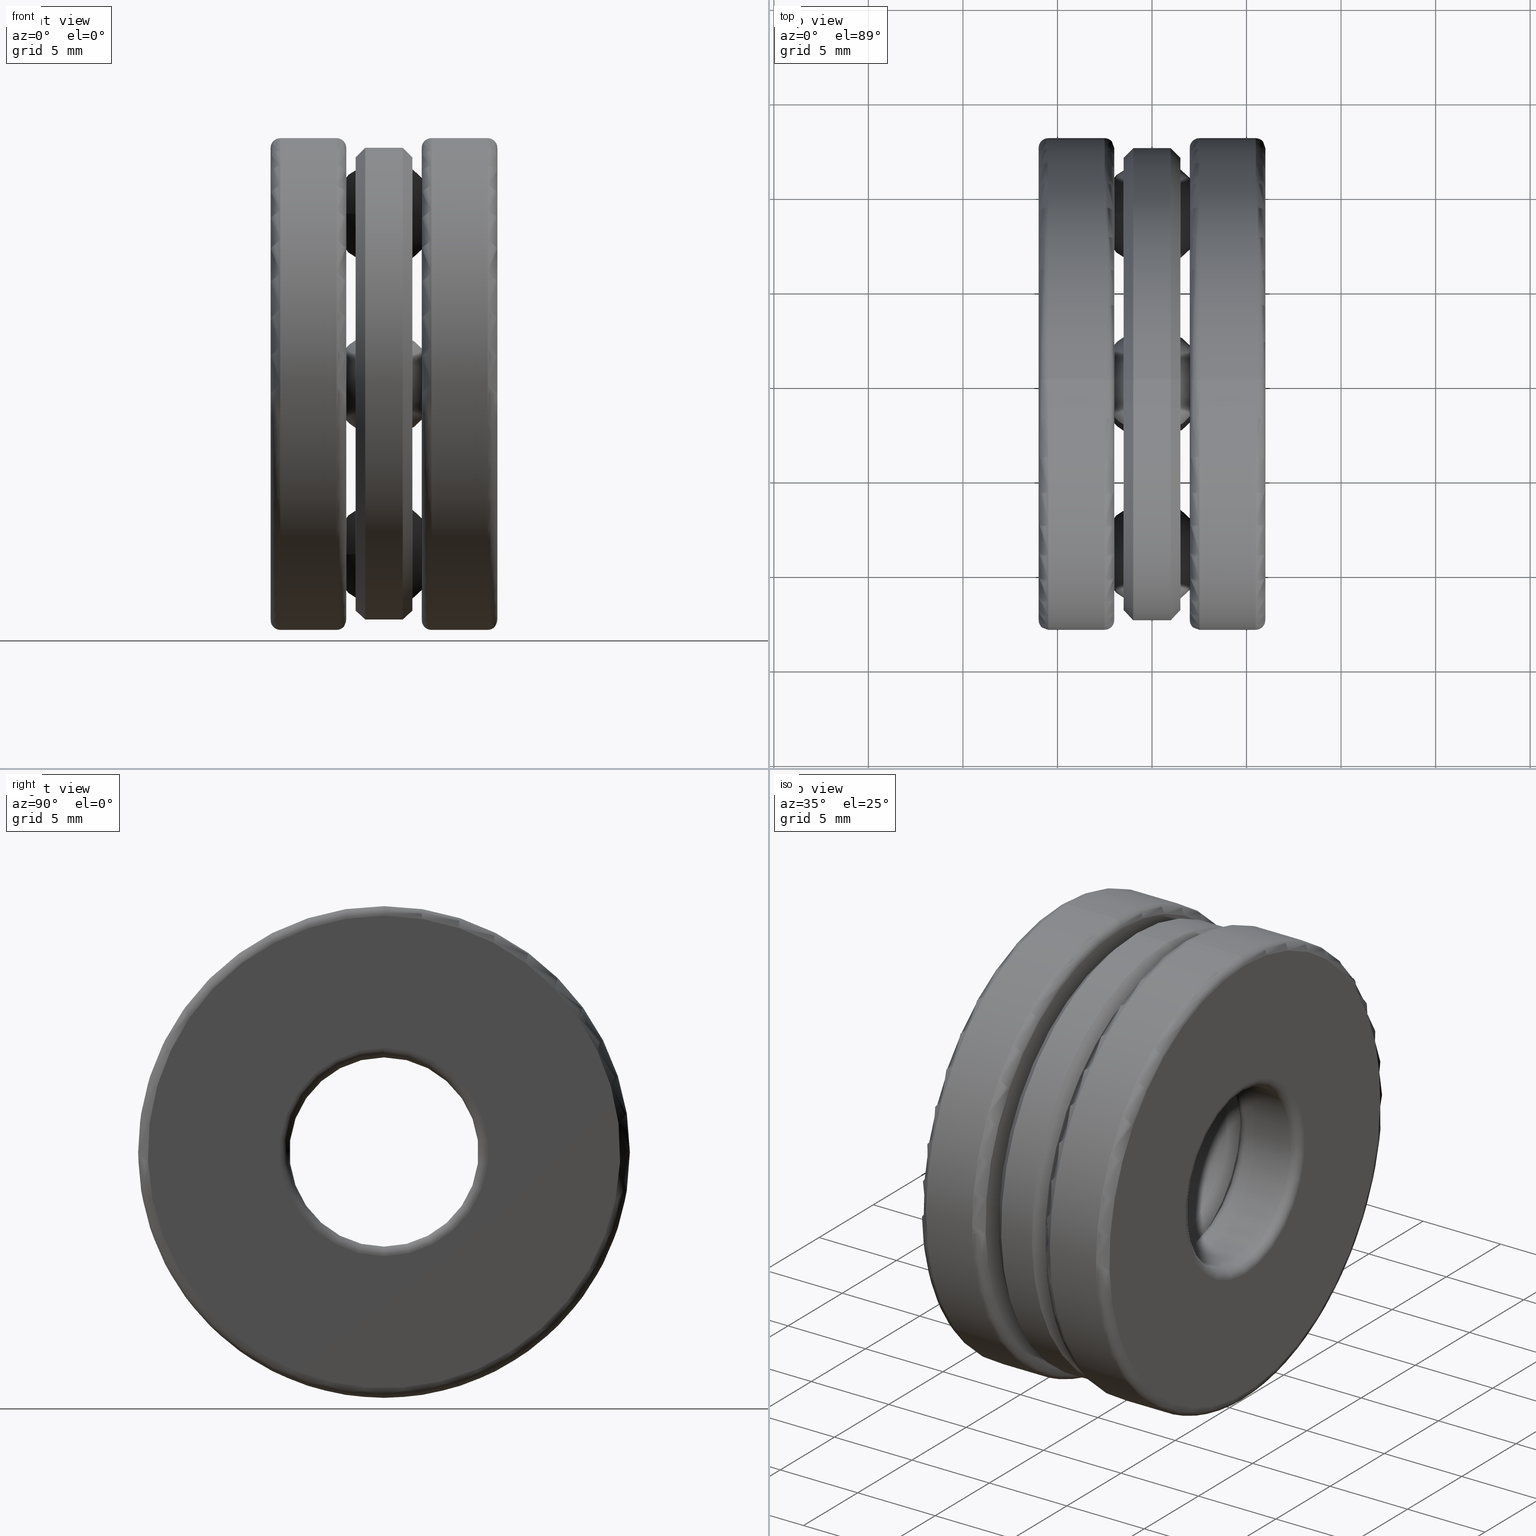
[diagram: canonical four-view strip — front | top / right | iso, engineering-drawing reading convention]
A machine part, canonical four-view strip (front | top / right | iso — engineering-drawing reading convention). The complete STEP part file that produces these views, byte-faithful:
ISO-10303-21;
HEADER;
FILE_DESCRIPTION (( 'STEP AP203' ),
    '1' );
FILE_NAME ('2900-ABB.step',
    '2017-03-07T16:42:49',
    ( '' ),
    ( '' ),
    'SwSTEP 2.0',
    'SolidWorks 2017',
    '' );
FILE_SCHEMA (( 'CONFIG_CONTROL_DESIGN' ));
ENDSEC;

DATA;
#1 = FACE_OUTER_BOUND ( 'NONE', #277, .T. ) ;
#2 = DIRECTION ( 'NONE',  ( -1.000000000000000000, -0.0000000000000000000, -0.0000000000000000000 ) ) ;
#3 = EDGE_CURVE ( 'NONE', #415, #415, #361, .T. ) ;
#4 = DIRECTION ( 'NONE',  ( 0.0000000000000000000, 0.0000000000000000000, -1.000000000000000000 ) ) ;
#5 = ORIENTED_EDGE ( 'NONE', *, *, #641, .T. ) ;
#6 = ORIENTED_EDGE ( 'NONE', *, *, #755, .T. ) ;
#7 = ORIENTED_EDGE ( 'NONE', *, *, #527, .T. ) ;
#8 = CARTESIAN_POINT ( 'NONE',  ( -0.03899999999999988900, 0.0000000000000000000, 0.0000000000000000000 ) ) ;
#9 = PERSON_AND_ORGANIZATION ( #132, #281 ) ;
#10 = FACE_BOUND ( 'NONE', #242, .T. ) ;
#11 = DIRECTION ( 'NONE',  ( -1.000000000000000000, -0.0000000000000000000, -0.0000000000000000000 ) ) ;
#12 = DIRECTION ( 'NONE',  ( -1.000000000000000000, -0.0000000000000000000, -0.0000000000000000000 ) ) ;
#13 =( GEOMETRIC_REPRESENTATION_CONTEXT ( 3 ) GLOBAL_UNCERTAINTY_ASSIGNED_CONTEXT ( ( #182 ) ) GLOBAL_UNIT_ASSIGNED_CONTEXT ( ( #288, #550, #290 ) ) REPRESENTATION_CONTEXT ( 'NONE', 'WORKASPACE' ) );
#14 = FACE_OUTER_BOUND ( 'NONE', #632, .T. ) ;
#15 = EDGE_LOOP ( 'NONE', ( #6 ) ) ;
#16 = APPROVAL_DATE_TIME ( #720, #423 ) ;
#17 = AXIS2_PLACEMENT_3D ( 'NONE', #425, #236, #160 ) ;
#18 = CIRCLE ( 'NONE', #626, 0.1969999999999999800 ) ;
#19 = DIRECTION ( 'NONE',  ( -1.000000000000000000, -0.0000000000000000000, -0.0000000000000000000 ) ) ;
#20 = ADVANCED_FACE ( 'NONE', ( #819, #187 ), #22, .F. ) ;
#21 = CC_DESIGN_PERSON_AND_ORGANIZATION_ASSIGNMENT ( #153, #668, ( #612 ) ) ;
#22 = CONICAL_SURFACE ( 'NONE', #699, 0.2369999999999998800, 0.7853981633974480600 ) ;
#23 = ADVANCED_FACE ( 'NONE', ( #509, #420 ), #329, .F. ) ;
#24 = ORIENTED_EDGE ( 'NONE', *, *, #506, .T. ) ;
#25 = ORIENTED_EDGE ( 'NONE', *, *, #183, .F. ) ;
#26 = VERTEX_POINT ( 'NONE', #791 ) ;
#27 = CARTESIAN_POINT ( 'NONE',  ( -0.2360393700787401500, 3.713190403859673000E-015, 0.3545000000000000900 ) ) ;
#28 = CIRCLE ( 'NONE', #38, 0.2369999999999998800 ) ;
#29 = AXIS2_PLACEMENT_3D ( 'NONE', #429, #491, #304 ) ;
#30 = CARTESIAN_POINT ( 'NONE',  ( -0.07866823999999988900, 0.0000000000000000000, 0.2783320407566120500 ) ) ;
#31 = CARTESIAN_POINT ( 'NONE',  ( 0.2160000000000002800, 0.0000000000000000000, 0.1969999999999999800 ) ) ;
#32 = EDGE_LOOP ( 'NONE', ( #371 ) ) ;
#33 = ADVANCED_FACE ( 'NONE', ( #657, #591 ), #773, .T. ) ;
#34 = EDGE_LOOP ( 'NONE', ( #519 ) ) ;
#35 = CARTESIAN_POINT ( 'NONE',  ( -0.09866823999999990700, 0.0000000000000000000, 0.0000000000000000000 ) ) ;
#36 = PERSON_AND_ORGANIZATION ( #132, #281 ) ;
#37 = CARTESIAN_POINT ( 'NONE',  ( -0.2360000000000000200, 0.0000000000000000000, 0.2169999999999998300 ) ) ;
#38 = AXIS2_PLACEMENT_3D ( 'NONE', #201, #77, #723 ) ;
#39 = CARTESIAN_POINT ( 'NONE',  ( 0.03900000000000011800, 0.0000000000000000000, 0.0000000000000000000 ) ) ;
#40 = DIRECTION ( 'NONE',  ( 0.0000000000000000000, 0.0000000000000000000, 1.000000000000000000 ) ) ;
#41 = FACE_OUTER_BOUND ( 'NONE', #717, .T. ) ;
#42 = ORIENTED_EDGE ( 'NONE', *, *, #192, .F. ) ;
#43 = AXIS2_PLACEMENT_3D ( 'NONE', #549, #792, #803 ) ;
#44 = ORIENTED_EDGE ( 'NONE', *, *, #245, .F. ) ;
#45 = DIRECTION ( 'NONE',  ( 0.0000000000000000000, 0.0000000000000000000, 1.000000000000000000 ) ) ;
#46 = DIRECTION ( 'NONE',  ( -1.000000000000000000, -0.0000000000000000000, -0.0000000000000000000 ) ) ;
#47 = VERTEX_POINT ( 'NONE', #737 ) ;
#48 = CIRCLE ( 'NONE', #156, 0.1145000000000000000 ) ;
#49 = PLANE ( 'NONE',  #29 ) ;
#50 = DIRECTION ( 'NONE',  ( -1.000000000000000000, -0.0000000000000000000, -0.0000000000000000000 ) ) ;
#51 = DIRECTION ( 'NONE',  ( 0.0000000000000000000, 0.0000000000000000000, -1.000000000000000000 ) ) ;
#52 = ORIENTED_EDGE ( 'NONE', *, *, #497, .F. ) ;
#53 = ORIENTED_EDGE ( 'NONE', *, *, #755, .F. ) ;
#54 = AXIS2_PLACEMENT_3D ( 'NONE', #644, #769, #707 ) ;
#55 = DIRECTION ( 'NONE',  ( 1.000000000000000000, 0.0000000000000000000, 0.0000000000000000000 ) ) ;
#56 = VERTEX_POINT ( 'NONE', #222 ) ;
#57 = FACE_OUTER_BOUND ( 'NONE', #399, .T. ) ;
#58 = AXIS2_PLACEMENT_3D ( 'NONE', #730, #46, #91 ) ;
#59 = SPHERICAL_SURFACE ( 'NONE', #294, 0.1094999999999999600 ) ;
#60 = FACE_OUTER_BOUND ( 'NONE', #34, .T. ) ;
#61 = CARTESIAN_POINT ( 'NONE',  ( 0.09866824000000018500, 0.0000000000000000000, 0.0000000000000000000 ) ) ;
#62 = EDGE_LOOP ( 'NONE', ( #25 ) ) ;
#63 = COORDINATED_UNIVERSAL_TIME_OFFSET ( 5, 0, .BEHIND. ) ;
#64 = CARTESIAN_POINT ( 'NONE',  ( 0.05900000000000009400, 8.573352746074037000E-018, 0.0000000000000000000 ) ) ;
#65 = VERTEX_POINT ( 'NONE', #606 ) ;
#66 = CIRCLE ( 'NONE', #536, 0.1969999999999999000 ) ;
#67 = AXIS2_PLACEMENT_3D ( 'NONE', #802, #50, #173 ) ;
#68 = CARTESIAN_POINT ( 'NONE',  ( 0.03900000000000006200, 0.0000000000000000000, 0.0000000000000000000 ) ) ;
#69 = EDGE_LOOP ( 'NONE', ( #42 ) ) ;
#70 = ORIENTED_EDGE ( 'NONE', *, *, #237, .T. ) ;
#71 = CARTESIAN_POINT ( 'NONE',  ( 0.2160000000000002800, 0.0000000000000000000, 0.0000000000000000000 ) ) ;
#72 = ADVANCED_BREP_SHAPE_REPRESENTATION ( '2900-ABB', ( #347, #135, #761, #194, #321, #545, #817, #772 ), #13 ) ;
#73 = EDGE_CURVE ( 'NONE', #459, #459, #252, .T. ) ;
#74 = VERTEX_POINT ( 'NONE', #785 ) ;
#75 = CIRCLE ( 'NONE', #175, 0.2169999999999998900 ) ;
#76 = SPHERICAL_SURFACE ( 'NONE', #364, 0.1094999999999999600 ) ;
#77 = DIRECTION ( 'NONE',  ( -1.000000000000000000, -0.0000000000000000000, -0.0000000000000000000 ) ) ;
#78 = AXIS2_PLACEMENT_3D ( 'NONE', #71, #584, #580 ) ;
#79 = ADVANCED_FACE ( 'NONE', ( #14, #307 ), #807, .F. ) ;
#80 = DIRECTION ( 'NONE',  ( 0.0000000000000000000, 0.0000000000000000000, 1.000000000000000000 ) ) ;
#81 = CYLINDRICAL_SURFACE ( 'NONE', #270, 0.1969999999999999800 ) ;
#82 = EDGE_LOOP ( 'NONE', ( #44 ) ) ;
#83 = EDGE_CURVE ( 'NONE', #47, #47, #681, .T. ) ;
#84 = VERTEX_POINT ( 'NONE', #539 ) ;
#85 = ADVANCED_FACE ( 'NONE', ( #126, #476 ), #81, .F. ) ;
#86 = DIRECTION ( 'NONE',  ( 0.0000000000000000000, 0.0000000000000000000, 1.000000000000000000 ) ) ;
#87 = CARTESIAN_POINT ( 'NONE',  ( 2.337818946421670800E-017, 0.0000000000000000000, 0.0000000000000000000 ) ) ;
#88 = AXIS2_PLACEMENT_3D ( 'NONE', #64, #521, #327 ) ;
#89 = ORIENTED_EDGE ( 'NONE', *, *, #751, .F. ) ;
#90 = ORIENTED_EDGE ( 'NONE', *, *, #3, .T. ) ;
#91 = DIRECTION ( 'NONE',  ( 0.0000000000000000000, 0.0000000000000000000, 1.000000000000000000 ) ) ;
#92 = CARTESIAN_POINT ( 'NONE',  ( 0.07866824000000018100, 0.0000000000000000000, 0.2169999999999998900 ) ) ;
#93 = CIRCLE ( 'NONE', #54, 0.1969999999999998400 ) ;
#94 = AXIS2_PLACEMENT_3D ( 'NONE', #526, #771, #141 ) ;
#95 = CARTESIAN_POINT ( 'NONE',  ( -0.05899999999999988600, 0.0000000000000000000, 0.0000000000000000000 ) ) ;
#96 = CARTESIAN_POINT ( 'NONE',  ( 0.03900000000000011800, 0.0000000000000000000, 0.2169999999999998900 ) ) ;
#97 = AXIS2_PLACEMENT_3D ( 'NONE', #540, #798, #613 ) ;
#98 = EDGE_LOOP ( 'NONE', ( #670 ) ) ;
#99 = EDGE_LOOP ( 'NONE', ( #316 ) ) ;
#100 = DIRECTION ( 'NONE',  ( 0.0000000000000000000, 0.0000000000000000000, 1.000000000000000000 ) ) ;
#101 = CALENDAR_DATE ( 2017, 7, 3 ) ;
#102 = CARTESIAN_POINT ( 'NONE',  ( 0.05900000000000009400, 3.713190403859673000E-015, 0.3545000000000000900 ) ) ;
#103 = VERTEX_POINT ( 'NONE', #346 ) ;
#104 = EDGE_CURVE ( 'NONE', #433, #433, #615, .T. ) ;
#105 = CIRCLE ( 'NONE', #110, 0.4719999999999999200 ) ;
#106 = CARTESIAN_POINT ( 'NONE',  ( -0.05899999999999990700, -0.3545000000000000900, 0.0000000000000000000 ) ) ;
#107 = DIRECTION ( 'NONE',  ( 0.0000000000000000000, 0.0000000000000000000, 1.000000000000000000 ) ) ;
#108 = APPLICATION_PROTOCOL_DEFINITION ( 'international standard', 'config_control_design', 1994, #601 ) ;
#109 = ORIENTED_EDGE ( 'NONE', *, *, #357, .F. ) ;
#110 = AXIS2_PLACEMENT_3D ( 'NONE', #500, #238, #248 ) ;
#111 = ORIENTED_EDGE ( 'NONE', *, *, #335, .F. ) ;
#112 = CARTESIAN_POINT ( 'NONE',  ( 2.337818946421670800E-017, -0.3545000000000000900, 0.0000000000000000000 ) ) ;
#113 = EDGE_LOOP ( 'NONE', ( #702 ) ) ;
#114 = DIRECTION ( 'NONE',  ( -1.000000000000000000, -0.0000000000000000000, -0.0000000000000000000 ) ) ;
#115 = PERSON_AND_ORGANIZATION ( #132, #281 ) ;
#116 = CARTESIAN_POINT ( 'NONE',  ( 2.337818946421670800E-017, 0.3545000000000000900, 0.0000000000000000000 ) ) ;
#117 = FACE_OUTER_BOUND ( 'NONE', #261, .T. ) ;
#118 = DIRECTION ( 'NONE',  ( 0.0000000000000000000, 0.0000000000000000000, 1.000000000000000000 ) ) ;
#119 = CARTESIAN_POINT ( 'NONE',  ( -0.05899999999999988600, 0.0000000000000000000, 0.0000000000000000000 ) ) ;
#120 = EDGE_LOOP ( 'NONE', ( #511 ) ) ;
#121 = EDGE_LOOP ( 'NONE', ( #568 ) ) ;
#122 = AXIS2_PLACEMENT_3D ( 'NONE', #400, #714, #525 ) ;
#123 = LENGTH_MEASURE_WITH_UNIT ( LENGTH_MEASURE( 0.02539999999999999900 ), #671 );
#124 = FACE_OUTER_BOUND ( 'NONE', #530, .T. ) ;
#125 = EDGE_CURVE ( 'NONE', #711, #711, #742, .T. ) ;
#126 = FACE_OUTER_BOUND ( 'NONE', #320, .T. ) ;
#127 = DIRECTION ( 'NONE',  ( 0.0000000000000000000, 0.0000000000000000000, 1.000000000000000000 ) ) ;
#128 = EDGE_LOOP ( 'NONE', ( #319 ) ) ;
#129 = ORIENTED_EDGE ( 'NONE', *, *, #314, .T. ) ;
#130 = AXIS2_PLACEMENT_3D ( 'NONE', #191, #193, #4 ) ;
#131 = PERSON_AND_ORGANIZATION ( #132, #281 ) ;
#132 = PERSON ( 'UNSPECIFIED', 'UNSPECIFIED', 'UNSPECIFIED', ('UNSPECIFIED'), ('UNSPECIFIED'), ('UNSPECIFIED') ) ;
#133 = FACE_BOUND ( 'NONE', #431, .T. ) ;
#134 = AXIS2_PLACEMENT_3D ( 'NONE', #453, #258, #265 ) ;
#135 = MANIFOLD_SOLID_BREP ( 'Revolve3', #682 ) ;
#136 = EDGE_LOOP ( 'NONE', ( #650 ) ) ;
#137 = ORIENTED_EDGE ( 'NONE', *, *, #497, .T. ) ;
#138 = AXIS2_PLACEMENT_3D ( 'NONE', #552, #159, #40 ) ;
#139 = DATE_AND_TIME ( #776, #199 ) ;
#140 = CIRCLE ( 'NONE', #738, 0.5120000000000001200 ) ;
#141 = DIRECTION ( 'NONE',  ( 0.0000000000000000000, 0.0000000000000000000, 1.000000000000000000 ) ) ;
#142 = CIRCLE ( 'NONE', #251, 0.4919999999999999900 ) ;
#143 = ADVANCED_FACE ( 'NONE', ( #574, #439 ), #398, .T. ) ;
#144 = CARTESIAN_POINT ( 'NONE',  ( 0.09866824000000018500, 0.0000000000000000000, 0.0000000000000000000 ) ) ;
#145 = AXIS2_PLACEMENT_3D ( 'NONE', #732, #800, #100 ) ;
#146 = EDGE_LOOP ( 'NONE', ( #188 ) ) ;
#147 = EDGE_LOOP ( 'NONE', ( #111 ) ) ;
#148 = ORIENTED_EDGE ( 'NONE', *, *, #229, .T. ) ;
#149 = FACE_OUTER_BOUND ( 'NONE', #520, .T. ) ;
#150 = CARTESIAN_POINT ( 'NONE',  ( 0.05900000000000007300, 0.0000000000000000000, 0.4719999999999999200 ) ) ;
#151 = CARTESIAN_POINT ( 'NONE',  ( -0.05899999999999990700, 0.3545000000000000900, -0.1145000000000000000 ) ) ;
#152 = ORIENTED_EDGE ( 'NONE', *, *, #517, .T. ) ;
#153 = PERSON_AND_ORGANIZATION ( #132, #281 ) ;
#154 = CARTESIAN_POINT ( 'NONE',  ( 0.09866824000000018500, 0.0000000000000000000, 0.5120000000000000100 ) ) ;
#155 = CIRCLE ( 'NONE', #315, 0.4919999999999999900 ) ;
#156 = AXIS2_PLACEMENT_3D ( 'NONE', #532, #211, #529 ) ;
#157 = DIRECTION ( 'NONE',  ( 0.0000000000000000000, 0.0000000000000000000, 1.000000000000000000 ) ) ;
#158 = FACE_BOUND ( 'NONE', #82, .T. ) ;
#159 = DIRECTION ( 'NONE',  ( -1.000000000000000000, -0.0000000000000000000, -0.0000000000000000000 ) ) ;
#160 = DIRECTION ( 'NONE',  ( -1.000000000000000000, 0.0000000000000000000, 0.0000000000000000000 ) ) ;
#161 = DIRECTION ( 'NONE',  ( 0.0000000000000000000, 0.0000000000000000000, -1.000000000000000000 ) ) ;
#162 = EDGE_CURVE ( 'NONE', #263, #263, #621, .T. ) ;
#163 = ORIENTED_EDGE ( 'NONE', *, *, #125, .T. ) ;
#164 = DIRECTION ( 'NONE',  ( 0.0000000000000000000, 0.0000000000000000000, 1.000000000000000000 ) ) ;
#165 = EDGE_LOOP ( 'NONE', ( #765 ) ) ;
#166 = DIRECTION ( 'NONE',  ( 1.000000000000000000, 0.0000000000000000000, 0.0000000000000000000 ) ) ;
#167 = EDGE_LOOP ( 'NONE', ( #543 ) ) ;
#168 = APPROVAL_PERSON_ORGANIZATION ( #503, #232, #351 ) ;
#169 = DIRECTION ( 'NONE',  ( -1.000000000000000000, -0.0000000000000000000, -0.0000000000000000000 ) ) ;
#170 = DIRECTION ( 'NONE',  ( 0.0000000000000000000, -1.000000000000000000, 3.578840166372397400E-015 ) ) ;
#171 = FACE_OUTER_BOUND ( 'NONE', #254, .T. ) ;
#172 = AXIS2_PLACEMENT_3D ( 'NONE', #457, #590, #597 ) ;
#173 = DIRECTION ( 'NONE',  ( 0.0000000000000000000, 0.0000000000000000000, 1.000000000000000000 ) ) ;
#174 = DIRECTION ( 'NONE',  ( -1.000000000000000000, -0.0000000000000000000, -0.0000000000000000000 ) ) ;
#175 = AXIS2_PLACEMENT_3D ( 'NONE', #8, #12, #638 ) ;
#176 = CIRCLE ( 'NONE', #778, 0.1145000000000000000 ) ;
#177 = EDGE_LOOP ( 'NONE', ( #205 ) ) ;
#178 = ADVANCED_FACE ( 'NONE', ( #669, #60 ), #49, .F. ) ;
#179 = DATE_AND_TIME ( #101, #633 ) ;
#180 = DIRECTION ( 'NONE',  ( 0.0000000000000000000, 0.0000000000000000000, 1.000000000000000000 ) ) ;
#181 = FACE_OUTER_BOUND ( 'NONE', #98, .T. ) ;
#182 = UNCERTAINTY_MEASURE_WITH_UNIT (LENGTH_MEASURE( 1.000000000000000100E-005 ), #288, 'distance_accuracy_value', 'NONE');
#183 = EDGE_CURVE ( 'NONE', #84, #84, #630, .T. ) ;
#184 = PLANE ( 'NONE',  #267 ) ;
#185 = CARTESIAN_POINT ( 'NONE',  ( 0.03900000000000006200, 0.0000000000000000000, 0.0000000000000000000 ) ) ;
#186 = EDGE_CURVE ( 'NONE', #752, #752, #176, .T. ) ;
#187 = FACE_OUTER_BOUND ( 'NONE', #197, .T. ) ;
#188 = ORIENTED_EDGE ( 'NONE', *, *, #404, .F. ) ;
#189 = PRODUCT_DEFINITION ( 'UNKNOWN', '', #612, #381 ) ;
#190 = EDGE_LOOP ( 'NONE', ( #300 ) ) ;
#191 = CARTESIAN_POINT ( 'NONE',  ( -0.07866823999999988900, 0.0000000000000000000, 0.0000000000000000000 ) ) ;
#192 = EDGE_CURVE ( 'NONE', #256, #256, #715, .T. ) ;
#193 = DIRECTION ( 'NONE',  ( 1.000000000000000000, 0.0000000000000000000, 0.0000000000000000000 ) ) ;
#194 = MANIFOLD_SOLID_BREP ( 'CirPattern4[1]', #808 ) ;
#195 = CARTESIAN_POINT ( 'NONE',  ( -0.09866823999999989300, 0.0000000000000000000, 0.0000000000000000000 ) ) ;
#196 = EDGE_LOOP ( 'NONE', ( #204 ) ) ;
#197 = EDGE_LOOP ( 'NONE', ( #289 ) ) ;
#198 = CARTESIAN_POINT ( 'NONE',  ( -0.2360393700787401500, 0.3545000000000000900, 0.0000000000000000000 ) ) ;
#199 = LOCAL_TIME ( 11, 42, 49.00000000000000000, #662 ) ;
#200 = FACE_OUTER_BOUND ( 'NONE', #643, .T. ) ;
#201 = CARTESIAN_POINT ( 'NONE',  ( 0.05900000000000010800, 0.0000000000000000000, 0.0000000000000000000 ) ) ;
#202 = DIRECTION ( 'NONE',  ( 1.000000000000000000, 0.0000000000000000000, 0.0000000000000000000 ) ) ;
#203 = FACE_OUTER_BOUND ( 'NONE', #750, .T. ) ;
#204 = ORIENTED_EDGE ( 'NONE', *, *, #566, .F. ) ;
#205 = ORIENTED_EDGE ( 'NONE', *, *, #724, .T. ) ;
#206 = DIRECTION ( 'NONE',  ( 0.0000000000000000000, 0.0000000000000000000, 1.000000000000000000 ) ) ;
#207 = PERSON_AND_ORGANIZATION_ROLE ( 'classification_officer' ) ;
#208 = EDGE_CURVE ( 'NONE', #513, #513, #276, .T. ) ;
#209 = DATE_AND_TIME ( #442, #594 ) ;
#210 = ADVANCED_FACE ( 'NONE', ( #487, #438 ), #455, .F. ) ;
#211 = DIRECTION ( 'NONE',  ( 1.000000000000000000, -0.0000000000000000000, 0.0000000000000000000 ) ) ;
#212 = FACE_OUTER_BOUND ( 'NONE', #260, .T. ) ;
#213 = CARTESIAN_POINT ( 'NONE',  ( -0.05899999999999990700, 0.1145000000000037100, 0.3544999999999988200 ) ) ;
#214 = ADVANCED_FACE ( 'NONE', ( ), #269, .T. ) ;
#215 = DIRECTION ( 'NONE',  ( -1.000000000000000000, -0.0000000000000000000, -0.0000000000000000000 ) ) ;
#216 = DATE_TIME_ROLE ( 'classification_date' ) ;
#217 = EDGE_LOOP ( 'NONE', ( #467 ) ) ;
#218 = EDGE_LOOP ( 'NONE', ( #152 ) ) ;
#219 = DIRECTION ( 'NONE',  ( 0.0000000000000000000, 0.0000000000000000000, 1.000000000000000000 ) ) ;
#220 = AXIS2_PLACEMENT_3D ( 'NONE', #337, #403, #80 ) ;
#221 = VERTEX_POINT ( 'NONE', #666 ) ;
#222 = CARTESIAN_POINT ( 'NONE',  ( -0.09866823999999989300, 0.0000000000000000000, 0.5120000000000001200 ) ) ;
#223 = AXIS2_PLACEMENT_3D ( 'NONE', #551, #293, #360 ) ;
#224 = DIRECTION ( 'NONE',  ( -1.000000000000000000, -0.0000000000000000000, -0.0000000000000000000 ) ) ;
#225 = ADVANCED_FACE ( 'NONE', ( #726, #793 ), #454, .T. ) ;
#226 = EDGE_LOOP ( 'NONE', ( #70 ) ) ;
#227 = ORIENTED_EDGE ( 'NONE', *, *, #724, .F. ) ;
#228 = LOCAL_TIME ( 11, 42, 49.00000000000000000, #533 ) ;
#229 = EDGE_CURVE ( 'NONE', #585, #585, #693, .T. ) ;
#230 = ADVANCED_FACE ( 'NONE', ( ), #518, .T. ) ;
#231 = VERTEX_POINT ( 'NONE', #286 ) ;
#232 = APPROVAL ( #472, 'UNSPECIFIED' ) ;
#233 = CARTESIAN_POINT ( 'NONE',  ( 0.2360000000000001500, 0.0000000000000000000, 0.0000000000000000000 ) ) ;
#234 = CIRCLE ( 'NONE', #485, 0.2369999999999998800 ) ;
#235 = DIRECTION ( 'NONE',  ( -1.000000000000000000, -0.0000000000000000000, -0.0000000000000000000 ) ) ;
#236 = DIRECTION ( 'NONE',  ( 0.0000000000000000000, -1.000000000000000000, 1.047444401652940000E-014 ) ) ;
#237 = EDGE_CURVE ( 'NONE', #221, #221, #419, .T. ) ;
#238 = DIRECTION ( 'NONE',  ( -1.000000000000000000, -0.0000000000000000000, -0.0000000000000000000 ) ) ;
#239 = CARTESIAN_POINT ( 'NONE',  ( 0.05900000000000010800, 0.0000000000000000000, 0.0000000000000000000 ) ) ;
#240 = EDGE_LOOP ( 'NONE', ( #622 ) ) ;
#241 = ADVANCED_FACE ( 'NONE', ( ), #59, .T. ) ;
#242 = EDGE_LOOP ( 'NONE', ( #298 ) ) ;
#243 = DIRECTION ( 'NONE',  ( 0.0000000000000000000, 0.0000000000000000000, 1.000000000000000000 ) ) ;
#244 = VERTEX_POINT ( 'NONE', #542 ) ;
#245 = EDGE_CURVE ( 'NONE', #704, #704, #250, .T. ) ;
#246 = SHAPE_DEFINITION_REPRESENTATION ( #786, #72 ) ;
#247 = CARTESIAN_POINT ( 'NONE',  ( -0.2360000000000000200, 0.0000000000000000000, 0.0000000000000000000 ) ) ;
#248 = DIRECTION ( 'NONE',  ( 0.0000000000000000000, 0.0000000000000000000, 1.000000000000000000 ) ) ;
#249 = ADVANCED_FACE ( 'NONE', ( #203, #41 ), #818, .F. ) ;
#250 = CIRCLE ( 'NONE', #368, 0.1145000000000000000 ) ;
#251 = AXIS2_PLACEMENT_3D ( 'NONE', #647, #317, #389 ) ;
#252 = CIRCLE ( 'NONE', #397, 0.1145000000000000000 ) ;
#253 = DIRECTION ( 'NONE',  ( 0.0000000000000000000, 0.0000000000000000000, -1.000000000000000000 ) ) ;
#254 = EDGE_LOOP ( 'NONE', ( #465 ) ) ;
#255 = CARTESIAN_POINT ( 'NONE',  ( 0.07866824000000018100, 0.0000000000000000000, 0.0000000000000000000 ) ) ;
#256 = VERTEX_POINT ( 'NONE', #728 ) ;
#257 = AXIS2_PLACEMENT_3D ( 'NONE', #562, #114, #164 ) ;
#258 = DIRECTION ( 'NONE',  ( -1.000000000000000000, -0.0000000000000000000, -0.0000000000000000000 ) ) ;
#259 = ORIENTED_EDGE ( 'NONE', *, *, #186, .F. ) ;
#260 = EDGE_LOOP ( 'NONE', ( #411 ) ) ;
#261 = EDGE_LOOP ( 'NONE', ( #330 ) ) ;
#262 = DIRECTION ( 'NONE',  ( -1.000000000000000000, -0.0000000000000000000, -0.0000000000000000000 ) ) ;
#263 = VERTEX_POINT ( 'NONE', #408 ) ;
#264 = CIRCLE ( 'NONE', #134, 0.5120000000000000100 ) ;
#265 = DIRECTION ( 'NONE',  ( 0.0000000000000000000, 0.0000000000000000000, 1.000000000000000000 ) ) ;
#266 = FACE_OUTER_BOUND ( 'NONE', #784, .T. ) ;
#267 = AXIS2_PLACEMENT_3D ( 'NONE', #443, #432, #498 ) ;
#268 = DIRECTION ( 'NONE',  ( 0.0000000000000000000, 1.000000000000000000, -1.073652049911719200E-014 ) ) ;
#269 = SPHERICAL_SURFACE ( 'NONE', #223, 0.1094999999999999600 ) ;
#270 = AXIS2_PLACEMENT_3D ( 'NONE', #477, #355, #418 ) ;
#271 = ORIENTED_EDGE ( 'NONE', *, *, #328, .T. ) ;
#272 = LOCAL_TIME ( 11, 42, 49.00000000000000000, #523 ) ;
#273 = FACE_OUTER_BOUND ( 'NONE', #99, .T. ) ;
#274 = CC_DESIGN_APPROVAL ( #679, ( #661 ) ) ;
#275 = DIRECTION ( 'NONE',  ( 0.0000000000000000000, 0.0000000000000000000, 1.000000000000000000 ) ) ;
#276 = CIRCLE ( 'NONE', #653, 0.2169999999999998900 ) ;
#277 = EDGE_LOOP ( 'NONE', ( #708 ) ) ;
#278 = CARTESIAN_POINT ( 'NONE',  ( -0.05899999999999990700, -0.1145000000000012300, -0.3544999999999996500 ) ) ;
#279 = EDGE_LOOP ( 'NONE', ( #592 ) ) ;
#280 = AXIS2_PLACEMENT_3D ( 'NONE', #299, #486, #624 ) ;
#281 = ORGANIZATION ( 'UNSPECIFIED', 'UNSPECIFIED', '' ) ;
#282 = DIRECTION ( 'NONE',  ( 1.000000000000000000, 0.0000000000000000000, 0.0000000000000000000 ) ) ;
#283 = APPROVAL_ROLE ( '' ) ;
#284 = FACE_BOUND ( 'NONE', #456, .T. ) ;
#285 = CARTESIAN_POINT ( 'NONE',  ( 0.0000000000000000000, 0.0000000000000000000, 0.0000000000000000000 ) ) ;
#286 = CARTESIAN_POINT ( 'NONE',  ( -0.03899999999999988900, 0.0000000000000000000, 0.2169999999999998900 ) ) ;
#287 = EDGE_CURVE ( 'NONE', #387, #387, #370, .T. ) ;
#288 =( CONVERSION_BASED_UNIT ( 'INCH', #123 ) LENGTH_UNIT ( ) NAMED_UNIT ( #379 ) );
#289 = ORIENTED_EDGE ( 'NONE', *, *, #335, .T. ) ;
#290 =( NAMED_UNIT ( * ) SI_UNIT ( $, .STERADIAN. ) SOLID_ANGLE_UNIT ( ) );
#291 = VERTEX_POINT ( 'NONE', #37 ) ;
#292 = FACE_OUTER_BOUND ( 'NONE', #541, .T. ) ;
#293 = DIRECTION ( 'NONE',  ( 0.0000000000000000000, 1.000000000000000000, -3.491481338843133700E-015 ) ) ;
#294 = AXIS2_PLACEMENT_3D ( 'NONE', #112, #674, #558 ) ;
#295 = DIRECTION ( 'NONE',  ( 1.000000000000000000, 0.0000000000000000000, 0.0000000000000000000 ) ) ;
#296 = DIRECTION ( 'NONE',  ( 1.000000000000000000, 0.0000000000000000000, 0.0000000000000000000 ) ) ;
#297 = EDGE_LOOP ( 'NONE', ( #52 ) ) ;
#298 = ORIENTED_EDGE ( 'NONE', *, *, #287, .F. ) ;
#299 = CARTESIAN_POINT ( 'NONE',  ( 0.2360000000000001500, 0.0000000000000000000, 0.0000000000000000000 ) ) ;
#300 = ORIENTED_EDGE ( 'NONE', *, *, #441, .F. ) ;
#301 = CARTESIAN_POINT ( 'NONE',  ( -0.05899999999999993400, 0.0000000000000000000, 0.0000000000000000000 ) ) ;
#302 = CARTESIAN_POINT ( 'NONE',  ( -0.07866823999999988900, 0.0000000000000000000, 0.0000000000000000000 ) ) ;
#303 = TOROIDAL_SURFACE ( 'NONE', #172, 0.4920000000000001000, 0.01999999999999990700 ) ;
#304 = DIRECTION ( 'NONE',  ( 0.0000000000000000000, 0.0000000000000000000, -1.000000000000000000 ) ) ;
#305 = DIRECTION ( 'NONE',  ( 0.0000000000000000000, 0.0000000000000000000, 1.000000000000000000 ) ) ;
#306 = ADVANCED_FACE ( 'NONE', ( #741, #805 ), #620, .T. ) ;
#307 = FACE_OUTER_BOUND ( 'NONE', #121, .T. ) ;
#308 = ORIENTED_EDGE ( 'NONE', *, *, #404, .T. ) ;
#309 = CARTESIAN_POINT ( 'NONE',  ( 0.07866824000000018100, 0.0000000000000000000, 0.0000000000000000000 ) ) ;
#310 = PERSON_AND_ORGANIZATION ( #132, #281 ) ;
#311 = AXIS2_PLACEMENT_3D ( 'NONE', #233, #683, #365 ) ;
#312 = CYLINDRICAL_SURFACE ( 'NONE', #637, 0.2169999999999998900 ) ;
#313 = DIRECTION ( 'NONE',  ( -1.000000000000000000, -0.0000000000000000000, -0.0000000000000000000 ) ) ;
#314 = EDGE_CURVE ( 'NONE', #244, #244, #587, .T. ) ;
#315 = AXIS2_PLACEMENT_3D ( 'NONE', #68, #313, #516 ) ;
#316 = ORIENTED_EDGE ( 'NONE', *, *, #506, .F. ) ;
#317 = DIRECTION ( 'NONE',  ( -1.000000000000000000, -0.0000000000000000000, -0.0000000000000000000 ) ) ;
#318 = ADVANCED_FACE ( 'NONE', ( #639, #124 ), #788, .T. ) ;
#319 = ORIENTED_EDGE ( 'NONE', *, *, #3, .F. ) ;
#320 = EDGE_LOOP ( 'NONE', ( #749 ) ) ;
#321 = MANIFOLD_SOLID_BREP ( 'CirPattern4[2]', #341 ) ;
#322 = DIRECTION ( 'NONE',  ( -1.000000000000000000, -0.0000000000000000000, -0.0000000000000000000 ) ) ;
#323 = VERTEX_POINT ( 'NONE', #479 ) ;
#324 = FACE_OUTER_BOUND ( 'NONE', #623, .T. ) ;
#325 = AXIS2_PLACEMENT_3D ( 'NONE', #285, #424, #482 ) ;
#326 = APPROVAL_STATUS ( 'not_yet_approved' ) ;
#327 = DIRECTION ( 'NONE',  ( 0.0000000000000000000, 0.0000000000000000000, -1.000000000000000000 ) ) ;
#328 = EDGE_CURVE ( 'NONE', #745, #745, #754, .T. ) ;
#329 = CYLINDRICAL_SURFACE ( 'NONE', #325, 0.1969999999999998700 ) ;
#330 = ORIENTED_EDGE ( 'NONE', *, *, #517, .F. ) ;
#331 = DIRECTION ( 'NONE',  ( -1.000000000000000000, -0.0000000000000000000, -0.0000000000000000000 ) ) ;
#332 = APPROVAL_PERSON_ORGANIZATION ( #36, #423, #602 ) ;
#333 = CONICAL_SURFACE ( 'NONE', #579, 0.4919999999999999900, 0.7853981633974496100 ) ;
#334 = DIRECTION ( 'NONE',  ( 0.0000000000000000000, 0.0000000000000000000, 1.000000000000000000 ) ) ;
#335 = EDGE_CURVE ( 'NONE', #444, #444, #234, .T. ) ;
#336 = FACE_BOUND ( 'NONE', #136, .T. ) ;
#337 = CARTESIAN_POINT ( 'NONE',  ( 0.2160000000000002800, 0.0000000000000000000, 0.0000000000000000000 ) ) ;
#338 = DIRECTION ( 'NONE',  ( 0.0000000000000000000, 0.0000000000000000000, 1.000000000000000000 ) ) ;
#339 = EDGE_LOOP ( 'NONE', ( #362 ) ) ;
#340 = AXIS2_PLACEMENT_3D ( 'NONE', #696, #55, #382 ) ;
#341 = CLOSED_SHELL ( 'NONE', ( #241 ) ) ;
#342 = DIRECTION ( 'NONE',  ( -1.000000000000000000, -0.0000000000000000000, -0.0000000000000000000 ) ) ;
#343 = DATE_AND_TIME ( #686, #228 ) ;
#344 = FACE_BOUND ( 'NONE', #392, .T. ) ;
#345 = CARTESIAN_POINT ( 'NONE',  ( -0.05899999999999993400, 0.0000000000000000000, 0.4719999999999999200 ) ) ;
#346 = CARTESIAN_POINT ( 'NONE',  ( 0.2160000000000002800, 0.0000000000000000000, 0.5120000000000000100 ) ) ;
#347 = MANIFOLD_SOLID_BREP ( 'Revolve1', #510 ) ;
#348 = EDGE_LOOP ( 'NONE', ( #412 ) ) ;
#349 = CARTESIAN_POINT ( 'NONE',  ( 0.07866824000000018100, 0.0000000000000000000, 0.4306679592433876900 ) ) ;
#350 = CLOSED_SHELL ( 'NONE', ( #230 ) ) ;
#351 = APPROVAL_ROLE ( '' ) ;
#352 = CARTESIAN_POINT ( 'NONE',  ( 0.0000000000000000000, 0.0000000000000000000, 0.0000000000000000000 ) ) ;
#353 = CIRCLE ( 'NONE', #94, 0.5120000000000001200 ) ;
#354 = CIRCLE ( 'NONE', #667, 0.2169999999999998300 ) ;
#355 = DIRECTION ( 'NONE',  ( -1.000000000000000000, -0.0000000000000000000, -0.0000000000000000000 ) ) ;
#356 = CARTESIAN_POINT ( 'NONE',  ( 0.05900000000000009400, -1.237730134619891000E-015, -0.3545000000000000900 ) ) ;
#357 = EDGE_CURVE ( 'NONE', #663, #663, #18, .T. ) ;
#358 = DIRECTION ( 'NONE',  ( 0.0000000000000000000, 1.000000000000000000, -1.073652049911719200E-014 ) ) ;
#359 = ADVANCED_FACE ( 'NONE', ( #336, #158, #627, #505, #735, #636 ), #508, .F. ) ;
#360 = DIRECTION ( 'NONE',  ( -1.000000000000000000, 0.0000000000000000000, 0.0000000000000000000 ) ) ;
#361 = CIRCLE ( 'NONE', #58, 0.5120000000000000100 ) ;
#362 = ORIENTED_EDGE ( 'NONE', *, *, #672, .T. ) ;
#363 = EDGE_LOOP ( 'NONE', ( #137 ) ) ;
#364 = AXIS2_PLACEMENT_3D ( 'NONE', #116, #692, #449 ) ;
#365 = DIRECTION ( 'NONE',  ( 0.0000000000000000000, 0.0000000000000000000, -1.000000000000000000 ) ) ;
#366 = VERTEX_POINT ( 'NONE', #421 ) ;
#367 = CARTESIAN_POINT ( 'NONE',  ( 0.07866824000000018100, 0.0000000000000000000, 0.0000000000000000000 ) ) ;
#368 = AXIS2_PLACEMENT_3D ( 'NONE', #106, #224, #688 ) ;
#369 = CARTESIAN_POINT ( 'NONE',  ( -0.05899999999999990700, -1.237730134619891000E-015, -0.3545000000000000900 ) ) ;
#370 = CIRCLE ( 'NONE', #712, 0.1145000000000000000 ) ;
#371 = ORIENTED_EDGE ( 'NONE', *, *, #502, .F. ) ;
#372 = PLANE ( 'NONE',  #600 ) ;
#373 = EDGE_LOOP ( 'NONE', ( #581 ) ) ;
#374 = CALENDAR_DATE ( 2017, 7, 3 ) ;
#375 = CARTESIAN_POINT ( 'NONE',  ( 0.0000000000000000000, 0.0000000000000000000, 0.0000000000000000000 ) ) ;
#376 = FACE_BOUND ( 'NONE', #373, .T. ) ;
#377 = ADVANCED_FACE ( 'NONE', ( #814, #609 ), #372, .T. ) ;
#378 = DIRECTION ( 'NONE',  ( 1.000000000000000000, 0.0000000000000000000, 0.0000000000000000000 ) ) ;
#379 = DIMENSIONAL_EXPONENTS ( 1.000000000000000000, 0.0000000000000000000, 0.0000000000000000000, 0.0000000000000000000, 0.0000000000000000000, 0.0000000000000000000, 0.0000000000000000000 ) ;
#380 = AXIS2_PLACEMENT_3D ( 'NONE', #87, #463, #338 ) ;
#381 = DESIGN_CONTEXT ( 'detailed design', #601, 'design' ) ;
#382 = DIRECTION ( 'NONE',  ( 0.0000000000000000000, 0.0000000000000000000, 1.000000000000000000 ) ) ;
#383 = ORIENTED_EDGE ( 'NONE', *, *, #502, .T. ) ;
#384 = ORIENTED_EDGE ( 'NONE', *, *, #744, .T. ) ;
#385 = DIRECTION ( 'NONE',  ( -1.000000000000000000, -0.0000000000000000000, -0.0000000000000000000 ) ) ;
#386 = AXIS2_PLACEMENT_3D ( 'NONE', #481, #806, #618 ) ;
#387 = VERTEX_POINT ( 'NONE', #546 ) ;
#388 = FACE_OUTER_BOUND ( 'NONE', #464, .T. ) ;
#389 = DIRECTION ( 'NONE',  ( 0.0000000000000000000, 0.0000000000000000000, 1.000000000000000000 ) ) ;
#390 = EDGE_CURVE ( 'NONE', #635, #635, #105, .T. ) ;
#391 = CARTESIAN_POINT ( 'NONE',  ( 0.0000000000000000000, 0.0000000000000000000, 0.0000000000000000000 ) ) ;
#392 = EDGE_LOOP ( 'NONE', ( #89 ) ) ;
#393 = ORIENTED_EDGE ( 'NONE', *, *, #751, .T. ) ;
#394 = FACE_OUTER_BOUND ( 'NONE', #339, .T. ) ;
#395 = AXIS2_PLACEMENT_3D ( 'NONE', #27, #775, #268 ) ;
#396 = DIRECTION ( 'NONE',  ( 0.0000000000000000000, 0.0000000000000000000, -1.000000000000000000 ) ) ;
#397 = AXIS2_PLACEMENT_3D ( 'NONE', #473, #544, #161 ) ;
#398 = TOROIDAL_SURFACE ( 'NONE', #575, 0.4920000000000002700, 0.01999999999999997600 ) ;
#399 = EDGE_LOOP ( 'NONE', ( #422 ) ) ;
#400 = CARTESIAN_POINT ( 'NONE',  ( -0.07866823999999988900, 0.0000000000000000000, 0.0000000000000000000 ) ) ;
#401 = PRODUCT ( '2900-ABB', '2900-ABB', '', ( #599 ) ) ;
#402 = ADVANCED_FACE ( 'NONE', ( #292, #1 ), #759, .T. ) ;
#403 = DIRECTION ( 'NONE',  ( -1.000000000000000000, -0.0000000000000000000, -0.0000000000000000000 ) ) ;
#404 = EDGE_CURVE ( 'NONE', #291, #291, #354, .T. ) ;
#405 = AXIS2_PLACEMENT_3D ( 'NONE', #198, #656, #553 ) ;
#406 = ADVANCED_FACE ( 'NONE', ( #284, #598 ), #698, .F. ) ;
#407 = ADVANCED_FACE ( 'NONE', ( #571, #483 ), #184, .F. ) ;
#408 = CARTESIAN_POINT ( 'NONE',  ( 0.07866824000000018100, 0.0000000000000000000, 0.4920000000000001000 ) ) ;
#409 = ADVANCED_FACE ( 'NONE', ( ), #76, .T. ) ;
#410 = EDGE_CURVE ( 'NONE', #414, #414, #746, .T. ) ;
#411 = ORIENTED_EDGE ( 'NONE', *, *, #229, .F. ) ;
#412 = ORIENTED_EDGE ( 'NONE', *, *, #641, .F. ) ;
#413 = CARTESIAN_POINT ( 'NONE',  ( -0.07866823999999988900, 0.0000000000000000000, 0.4306679592433880800 ) ) ;
#414 = VERTEX_POINT ( 'NONE', #611 ) ;
#415 = VERTEX_POINT ( 'NONE', #154 ) ;
#416 = PERSON_AND_ORGANIZATION_ROLE ( 'creator' ) ;
#417 = DIRECTION ( 'NONE',  ( 0.0000000000000000000, 0.0000000000000000000, 1.000000000000000000 ) ) ;
#418 = DIRECTION ( 'NONE',  ( 0.0000000000000000000, 0.0000000000000000000, 1.000000000000000000 ) ) ;
#419 = CIRCLE ( 'NONE', #280, 0.2169999999999999700 ) ;
#420 = FACE_OUTER_BOUND ( 'NONE', #240, .T. ) ;
#421 = CARTESIAN_POINT ( 'NONE',  ( -0.09866823999999989300, 0.0000000000000000000, 0.1969999999999999000 ) ) ;
#422 = ORIENTED_EDGE ( 'NONE', *, *, #450, .T. ) ;
#423 = APPROVAL ( #326, 'UNSPECIFIED' ) ;
#424 = DIRECTION ( 'NONE',  ( -1.000000000000000000, -0.0000000000000000000, -0.0000000000000000000 ) ) ;
#425 = CARTESIAN_POINT ( 'NONE',  ( 2.337818946421670800E-017, 3.713190403859673000E-015, 0.3545000000000000900 ) ) ;
#426 = AXIS2_PLACEMENT_3D ( 'NONE', #569, #757, #573 ) ;
#427 = DIRECTION ( 'NONE',  ( -1.000000000000000000, -0.0000000000000000000, -0.0000000000000000000 ) ) ;
#428 = ORIENTED_EDGE ( 'NONE', *, *, #410, .T. ) ;
#429 = CARTESIAN_POINT ( 'NONE',  ( -0.2360000000000000200, 0.0000000000000000000, 0.0000000000000000000 ) ) ;
#430 = EDGE_LOOP ( 'NONE', ( #7 ) ) ;
#431 = EDGE_LOOP ( 'NONE', ( #440 ) ) ;
#432 = DIRECTION ( 'NONE',  ( 1.000000000000000000, 0.0000000000000000000, 0.0000000000000000000 ) ) ;
#433 = VERTEX_POINT ( 'NONE', #345 ) ;
#434 = DIRECTION ( 'NONE',  ( -1.000000000000000000, -0.0000000000000000000, -0.0000000000000000000 ) ) ;
#435 = TOROIDAL_SURFACE ( 'NONE', #475, 0.4919999999999999900, 0.02000000000000010100 ) ;
#436 = AXIS2_PLACEMENT_3D ( 'NONE', #356, #282, #664 ) ;
#437 = DIRECTION ( 'NONE',  ( 1.000000000000000000, 0.0000000000000000000, 0.0000000000000000000 ) ) ;
#438 = FACE_OUTER_BOUND ( 'NONE', #196, .T. ) ;
#439 = FACE_OUTER_BOUND ( 'NONE', #177, .T. ) ;
#440 = ORIENTED_EDGE ( 'NONE', *, *, #566, .T. ) ;
#441 = EDGE_CURVE ( 'NONE', #596, #596, #142, .T. ) ;
#442 = CALENDAR_DATE ( 2017, 7, 3 ) ;
#443 = CARTESIAN_POINT ( 'NONE',  ( 0.07866824000000018100, 0.0000000000000000000, 0.0000000000000000000 ) ) ;
#444 = VERTEX_POINT ( 'NONE', #789 ) ;
#445 = CC_DESIGN_PERSON_AND_ORGANIZATION_ASSIGNMENT ( #115, #719, ( #401 ) ) ;
#446 = ORIENTED_EDGE ( 'NONE', *, *, #527, .F. ) ;
#447 = ORIENTED_EDGE ( 'NONE', *, *, #192, .T. ) ;
#448 = ORIENTED_EDGE ( 'NONE', *, *, #83, .F. ) ;
#449 = DIRECTION ( 'NONE',  ( -1.000000000000000000, 0.0000000000000000000, 0.0000000000000000000 ) ) ;
#450 = EDGE_CURVE ( 'NONE', #366, #366, #66, .T. ) ;
#451 = FACE_OUTER_BOUND ( 'NONE', #695, .T. ) ;
#452 = PLANE ( 'NONE',  #88 ) ;
#453 = CARTESIAN_POINT ( 'NONE',  ( 0.2160000000000002800, 0.0000000000000000000, 0.0000000000000000000 ) ) ;
#454 = CYLINDRICAL_SURFACE ( 'NONE', #386, 0.5120000000000000100 ) ;
#455 = CONICAL_SURFACE ( 'NONE', #687, 0.2369999999999998800, 0.7853981633974482800 ) ;
#456 = EDGE_LOOP ( 'NONE', ( #53 ) ) ;
#457 = CARTESIAN_POINT ( 'NONE',  ( 0.2160000000000002800, 0.0000000000000000000, 0.0000000000000000000 ) ) ;
#458 = PERSON_AND_ORGANIZATION ( #132, #281 ) ;
#459 = VERTEX_POINT ( 'NONE', #151 ) ;
#460 = CC_DESIGN_PERSON_AND_ORGANIZATION_ASSIGNMENT ( #9, #780, ( #612 ) ) ;
#461 = FACE_BOUND ( 'NONE', #809, .T. ) ;
#462 = ADVANCED_FACE ( 'NONE', ( #768, #471 ), #760, .T. ) ;
#463 = DIRECTION ( 'NONE',  ( -1.000000000000000000, -0.0000000000000000000, -0.0000000000000000000 ) ) ;
#464 = EDGE_LOOP ( 'NONE', ( #501 ) ) ;
#465 = ORIENTED_EDGE ( 'NONE', *, *, #186, .T. ) ;
#466 = CARTESIAN_POINT ( 'NONE',  ( 2.337818946421670800E-017, 0.0000000000000000000, 0.0000000000000000000 ) ) ;
#467 = ORIENTED_EDGE ( 'NONE', *, *, #237, .F. ) ;
#468 = VERTEX_POINT ( 'NONE', #349 ) ;
#469 = CARTESIAN_POINT ( 'NONE',  ( -0.07866823999999988900, 0.0000000000000000000, 0.4919999999999999900 ) ) ;
#470 = CYLINDRICAL_SURFACE ( 'NONE', #395, 0.1145000000000000000 ) ;
#471 = FACE_OUTER_BOUND ( 'NONE', #190, .T. ) ;
#472 = APPROVAL_STATUS ( 'not_yet_approved' ) ;
#473 = CARTESIAN_POINT ( 'NONE',  ( -0.05899999999999990700, 0.3545000000000000900, 0.0000000000000000000 ) ) ;
#474 = DIRECTION ( 'NONE',  ( -1.000000000000000000, -0.0000000000000000000, -0.0000000000000000000 ) ) ;
#475 = AXIS2_PLACEMENT_3D ( 'NONE', #35, #215, #219 ) ;
#476 = FACE_OUTER_BOUND ( 'NONE', #821, .T. ) ;
#477 = CARTESIAN_POINT ( 'NONE',  ( 0.0000000000000000000, 0.0000000000000000000, 0.0000000000000000000 ) ) ;
#478 = EDGE_LOOP ( 'NONE', ( #446 ) ) ;
#479 = CARTESIAN_POINT ( 'NONE',  ( 0.05900000000000010800, 0.0000000000000000000, 0.2369999999999998800 ) ) ;
#480 = APPROVAL_DATE_TIME ( #179, #232 ) ;
#481 = CARTESIAN_POINT ( 'NONE',  ( 0.0000000000000000000, 0.0000000000000000000, 0.0000000000000000000 ) ) ;
#482 = DIRECTION ( 'NONE',  ( 0.0000000000000000000, 0.0000000000000000000, 1.000000000000000000 ) ) ;
#483 = FACE_OUTER_BOUND ( 'NONE', #729, .T. ) ;
#484 = CARTESIAN_POINT ( 'NONE',  ( -0.09866823999999989300, 0.0000000000000000000, 0.0000000000000000000 ) ) ;
#485 = AXIS2_PLACEMENT_3D ( 'NONE', #119, #2, #118 ) ;
#486 = DIRECTION ( 'NONE',  ( -1.000000000000000000, -0.0000000000000000000, -0.0000000000000000000 ) ) ;
#487 = FACE_BOUND ( 'NONE', #603, .T. ) ;
#488 = EDGE_LOOP ( 'NONE', ( #259 ) ) ;
#489 = AXIS2_PLACEMENT_3D ( 'NONE', #255, #703, #710 ) ;
#490 = CARTESIAN_POINT ( 'NONE',  ( 0.09866824000000018500, 0.0000000000000000000, 0.0000000000000000000 ) ) ;
#491 = DIRECTION ( 'NONE',  ( 1.000000000000000000, 0.0000000000000000000, 0.0000000000000000000 ) ) ;
#492 = APPROVAL_PERSON_ORGANIZATION ( #458, #679, #283 ) ;
#493 = DIRECTION ( 'NONE',  ( -1.000000000000000000, -0.0000000000000000000, -0.0000000000000000000 ) ) ;
#494 = FACE_OUTER_BOUND ( 'NONE', #62, .T. ) ;
#495 = DIRECTION ( 'NONE',  ( -1.000000000000000000, -0.0000000000000000000, -0.0000000000000000000 ) ) ;
#496 = ADVANCED_FACE ( 'NONE', ( #461, #273 ), #333, .T. ) ;
#497 = EDGE_CURVE ( 'NONE', #777, #777, #648, .T. ) ;
#498 = DIRECTION ( 'NONE',  ( 0.0000000000000000000, 0.0000000000000000000, -1.000000000000000000 ) ) ;
#499 = CARTESIAN_POINT ( 'NONE',  ( -0.05899999999999990700, 3.713190403859673000E-015, 0.3545000000000000900 ) ) ;
#500 = CARTESIAN_POINT ( 'NONE',  ( 0.05900000000000007300, 0.0000000000000000000, 0.0000000000000000000 ) ) ;
#501 = ORIENTED_EDGE ( 'NONE', *, *, #73, .T. ) ;
#502 = EDGE_CURVE ( 'NONE', #231, #231, #75, .T. ) ;
#503 = PERSON_AND_ORGANIZATION ( #132, #281 ) ;
#504 = FACE_OUTER_BOUND ( 'NONE', #279, .T. ) ;
#505 = FACE_BOUND ( 'NONE', #167, .T. ) ;
#506 = EDGE_CURVE ( 'NONE', #535, #535, #155, .T. ) ;
#507 = CC_DESIGN_PERSON_AND_ORGANIZATION_ASSIGNMENT ( #310, #207, ( #661 ) ) ;
#508 = PLANE ( 'NONE',  #426 ) ;
#509 = FACE_OUTER_BOUND ( 'NONE', #430, .T. ) ;
#510 = CLOSED_SHELL ( 'NONE', ( #654, #462, #779, #402, #143, #178, #33, #23, #595, #377 ) ) ;
#511 = ORIENTED_EDGE ( 'NONE', *, *, #208, .F. ) ;
#512 = AXIS2_PLACEMENT_3D ( 'NONE', #39, #169, #157 ) ;
#513 = VERTEX_POINT ( 'NONE', #92 ) ;
#514 = CONICAL_SURFACE ( 'NONE', #593, 0.4719999999999999200, 0.7853981633974492800 ) ;
#515 = ADVANCED_FACE ( 'NONE', ( #266, #494 ), #705, .T. ) ;
#516 = DIRECTION ( 'NONE',  ( 0.0000000000000000000, 0.0000000000000000000, 1.000000000000000000 ) ) ;
#517 = EDGE_CURVE ( 'NONE', #103, #103, #264, .T. ) ;
#518 = SPHERICAL_SURFACE ( 'NONE', #17, 0.1094999999999999600 ) ;
#519 = ORIENTED_EDGE ( 'NONE', *, *, #83, .T. ) ;
#520 = EDGE_LOOP ( 'NONE', ( #447 ) ) ;
#521 = DIRECTION ( 'NONE',  ( 1.000000000000000000, 0.0000000000000000000, 0.0000000000000000000 ) ) ;
#522 = CC_DESIGN_APPROVAL ( #423, ( #189 ) ) ;
#523 = COORDINATED_UNIVERSAL_TIME_OFFSET ( 5, 0, .BEHIND. ) ;
#524 = FACE_OUTER_BOUND ( 'NONE', #297, .T. ) ;
#525 = DIRECTION ( 'NONE',  ( 0.0000000000000000000, 0.0000000000000000000, 1.000000000000000000 ) ) ;
#526 = CARTESIAN_POINT ( 'NONE',  ( -0.2159999999999999700, 0.0000000000000000000, 0.0000000000000000000 ) ) ;
#527 = EDGE_CURVE ( 'NONE', #74, #74, #93, .T. ) ;
#528 = ADVANCED_FACE ( 'NONE', ( #344, #824, #10, #801, #133, #652 ), #452, .T. ) ;
#529 = DIRECTION ( 'NONE',  ( 0.0000000000000000000, 0.0000000000000000000, -1.000000000000000000 ) ) ;
#530 = EDGE_LOOP ( 'NONE', ( #109 ) ) ;
#531 = EDGE_LOOP ( 'NONE', ( #605 ) ) ;
#532 = CARTESIAN_POINT ( 'NONE',  ( 0.05900000000000009400, 0.3545000000000000900, 0.0000000000000000000 ) ) ;
#533 = COORDINATED_UNIVERSAL_TIME_OFFSET ( 5, 0, .BEHIND. ) ;
#534 = APPROVAL_STATUS ( 'not_yet_approved' ) ;
#535 = VERTEX_POINT ( 'NONE', #725 ) ;
#536 = AXIS2_PLACEMENT_3D ( 'NONE', #195, #322, #578 ) ;
#537 = TOROIDAL_SURFACE ( 'NONE', #790, 0.3545000000000000900, 0.1094999999999999600 ) ;
#538 = CARTESIAN_POINT ( 'NONE',  ( 0.0000000000000000000, 0.0000000000000000000, 0.0000000000000000000 ) ) ;
#539 = CARTESIAN_POINT ( 'NONE',  ( -0.03899999999999992400, 0.0000000000000000000, 0.4919999999999999900 ) ) ;
#540 = CARTESIAN_POINT ( 'NONE',  ( -0.2360393700787401500, -0.3545000000000000900, 0.0000000000000000000 ) ) ;
#541 = EDGE_LOOP ( 'NONE', ( #227 ) ) ;
#542 = CARTESIAN_POINT ( 'NONE',  ( -0.07866823999999988900, 0.0000000000000000000, 0.2170000000000000300 ) ) ;
#543 = ORIENTED_EDGE ( 'NONE', *, *, #73, .F. ) ;
#544 = DIRECTION ( 'NONE',  ( -1.000000000000000000, -0.0000000000000000000, -0.0000000000000000000 ) ) ;
#545 = MANIFOLD_SOLID_BREP ( 'CirPattern4[3]', #350 ) ;
#546 = CARTESIAN_POINT ( 'NONE',  ( 0.05900000000000009400, 0.1145000000000037100, 0.3544999999999988200 ) ) ;
#547 = AXIS2_PLACEMENT_3D ( 'NONE', #685, #495, #691 ) ;
#548 = FACE_OUTER_BOUND ( 'NONE', #555, .T. ) ;
#549 = CARTESIAN_POINT ( 'NONE',  ( -0.2160000000000000000, 0.0000000000000000000, 0.0000000000000000000 ) ) ;
#550 =( NAMED_UNIT ( * ) PLANE_ANGLE_UNIT ( ) SI_UNIT ( $, .RADIAN. ) );
#551 = CARTESIAN_POINT ( 'NONE',  ( 2.337818946421670800E-017, -1.237730134619891000E-015, -0.3545000000000000900 ) ) ;
#552 = CARTESIAN_POINT ( 'NONE',  ( -0.2360000000000000200, 0.0000000000000000000, 0.0000000000000000000 ) ) ;
#553 = DIRECTION ( 'NONE',  ( 0.0000000000000000000, 0.0000000000000000000, -1.000000000000000000 ) ) ;
#554 = CC_DESIGN_PERSON_AND_ORGANIZATION_ASSIGNMENT ( #131, #416, ( #189 ) ) ;
#555 = EDGE_LOOP ( 'NONE', ( #384 ) ) ;
#556 = ORIENTED_EDGE ( 'NONE', *, *, #162, .T. ) ;
#557 = COORDINATED_UNIVERSAL_TIME_OFFSET ( 5, 0, .BEHIND. ) ;
#558 = DIRECTION ( 'NONE',  ( -1.000000000000000000, 0.0000000000000000000, 0.0000000000000000000 ) ) ;
#559 = CARTESIAN_POINT ( 'NONE',  ( -0.2160000000000000000, 0.0000000000000000000, 0.0000000000000000000 ) ) ;
#560 = CIRCLE ( 'NONE', #122, 0.2783320407566120500 ) ;
#561 = AXIS2_PLACEMENT_3D ( 'NONE', #490, #631, #305 ) ;
#562 = CARTESIAN_POINT ( 'NONE',  ( 0.07866824000000018100, 0.0000000000000000000, 0.0000000000000000000 ) ) ;
#563 = DIRECTION ( 'NONE',  ( 0.0000000000000000000, 0.0000000000000000000, -1.000000000000000000 ) ) ;
#564 = DIRECTION ( 'NONE',  ( 0.0000000000000000000, 0.0000000000000000000, 1.000000000000000000 ) ) ;
#565 = ADVANCED_FACE ( 'NONE', ( #646, #548 ), #753, .T. ) ;
#566 = EDGE_CURVE ( 'NONE', #323, #323, #28, .T. ) ;
#567 = EDGE_LOOP ( 'NONE', ( #5 ) ) ;
#568 = ORIENTED_EDGE ( 'NONE', *, *, #245, .T. ) ;
#569 = CARTESIAN_POINT ( 'NONE',  ( -0.05899999999999991400, -1.286002911911098800E-017, 0.0000000000000000000 ) ) ;
#570 = FACE_OUTER_BOUND ( 'NONE', #531, .T. ) ;
#571 = FACE_BOUND ( 'NONE', #120, .T. ) ;
#572 = CC_DESIGN_DATE_AND_TIME_ASSIGNMENT ( #343, #607, ( #189 ) ) ;
#573 = DIRECTION ( 'NONE',  ( 0.0000000000000000000, 0.0000000000000000000, -1.000000000000000000 ) ) ;
#574 = FACE_OUTER_BOUND ( 'NONE', #782, .T. ) ;
#575 = AXIS2_PLACEMENT_3D ( 'NONE', #559, #235, #564 ) ;
#576 = EDGE_LOOP ( 'NONE', ( #129 ) ) ;
#577 = DIRECTION ( 'NONE',  ( -1.000000000000000000, -0.0000000000000000000, -0.0000000000000000000 ) ) ;
#578 = DIRECTION ( 'NONE',  ( 0.0000000000000000000, 0.0000000000000000000, 1.000000000000000000 ) ) ;
#579 = AXIS2_PLACEMENT_3D ( 'NONE', #185, #11, #764 ) ;
#580 = DIRECTION ( 'NONE',  ( 0.0000000000000000000, 0.0000000000000000000, 1.000000000000000000 ) ) ;
#581 = ORIENTED_EDGE ( 'NONE', *, *, #104, .F. ) ;
#582 = ORIENTED_EDGE ( 'NONE', *, *, #390, .T. ) ;
#583 = AXIS2_PLACEMENT_3D ( 'NONE', #739, #677, #797 ) ;
#584 = DIRECTION ( 'NONE',  ( -1.000000000000000000, -0.0000000000000000000, -0.0000000000000000000 ) ) ;
#585 = VERTEX_POINT ( 'NONE', #96 ) ;
#586 = FACE_OUTER_BOUND ( 'NONE', #660, .T. ) ;
#587 = CIRCLE ( 'NONE', #629, 0.2170000000000000300 ) ;
#588 = CARTESIAN_POINT ( 'NONE',  ( -0.07866823999999988900, 0.0000000000000000000, 0.0000000000000000000 ) ) ;
#589 = AXIS2_PLACEMENT_3D ( 'NONE', #375, #174, #180 ) ;
#590 = DIRECTION ( 'NONE',  ( -1.000000000000000000, -0.0000000000000000000, -0.0000000000000000000 ) ) ;
#591 = FACE_OUTER_BOUND ( 'NONE', #478, .T. ) ;
#592 = ORIENTED_EDGE ( 'NONE', *, *, #441, .T. ) ;
#593 = AXIS2_PLACEMENT_3D ( 'NONE', #713, #202, #396 ) ;
#594 = LOCAL_TIME ( 11, 42, 49.00000000000000000, #557 ) ;
#595 = ADVANCED_FACE ( 'NONE', ( #665, #57 ), #625, .T. ) ;
#596 = VERTEX_POINT ( 'NONE', #469 ) ;
#597 = DIRECTION ( 'NONE',  ( 0.0000000000000000000, 0.0000000000000000000, 1.000000000000000000 ) ) ;
#598 = FACE_OUTER_BOUND ( 'NONE', #694, .T. ) ;
#599 = MECHANICAL_CONTEXT ( 'NONE', #804, 'mechanical' ) ;
#600 = AXIS2_PLACEMENT_3D ( 'NONE', #815, #437, #253 ) ;
#601 = APPLICATION_CONTEXT ( 'configuration controlled 3d designs of mechanical parts and assemblies' ) ;
#602 = APPROVAL_ROLE ( '' ) ;
#603 = EDGE_LOOP ( 'NONE', ( #148 ) ) ;
#604 = ORIENTED_EDGE ( 'NONE', *, *, #104, .T. ) ;
#605 = ORIENTED_EDGE ( 'NONE', *, *, #162, .F. ) ;
#606 = CARTESIAN_POINT ( 'NONE',  ( -0.2159999999999999700, 0.0000000000000000000, 0.5120000000000001200 ) ) ;
#607 = DATE_TIME_ROLE ( 'creation_date' ) ;
#608 = CIRCLE ( 'NONE', #436, 0.1145000000000000000 ) ;
#609 = FACE_OUTER_BOUND ( 'NONE', #348, .T. ) ;
#610 = CARTESIAN_POINT ( 'NONE',  ( 0.05900000000000009400, -0.3545000000000000900, 0.1145000000000000000 ) ) ;
#611 = CARTESIAN_POINT ( 'NONE',  ( 0.07866824000000018100, 0.0000000000000000000, 0.2783320407566124400 ) ) ;
#612 = PRODUCT_DEFINITION_FORMATION_WITH_SPECIFIED_SOURCE ( 'ANY', '', #401, .NOT_KNOWN. ) ;
#613 = DIRECTION ( 'NONE',  ( 0.0000000000000000000, 0.0000000000000000000, 1.000000000000000000 ) ) ;
#614 = ADVANCED_FACE ( 'NONE', ( #787, #376 ), #514, .T. ) ;
#615 = CIRCLE ( 'NONE', #762, 0.4719999999999999200 ) ;
#616 = CARTESIAN_POINT ( 'NONE',  ( 0.09866824000000018500, 0.0000000000000000000, 0.1969999999999999800 ) ) ;
#617 = ORIENTED_EDGE ( 'NONE', *, *, #208, .T. ) ;
#618 = DIRECTION ( 'NONE',  ( 0.0000000000000000000, 0.0000000000000000000, 1.000000000000000000 ) ) ;
#619 = AXIS2_PLACEMENT_3D ( 'NONE', #659, #19, #275 ) ;
#620 = PLANE ( 'NONE',  #311 ) ;
#621 = CIRCLE ( 'NONE', #257, 0.4920000000000001000 ) ;
#622 = ORIENTED_EDGE ( 'NONE', *, *, #450, .F. ) ;
#623 = EDGE_LOOP ( 'NONE', ( #766 ) ) ;
#624 = DIRECTION ( 'NONE',  ( 0.0000000000000000000, 0.0000000000000000000, 1.000000000000000000 ) ) ;
#625 = TOROIDAL_SURFACE ( 'NONE', #619, 0.2169999999999999700, 0.02000000000000003500 ) ;
#626 = AXIS2_PLACEMENT_3D ( 'NONE', #61, #577, #690 ) ;
#627 = FACE_BOUND ( 'NONE', #488, .T. ) ;
#628 = ADVANCED_FACE ( 'NONE', ( #212, #200 ), #312, .F. ) ;
#629 = AXIS2_PLACEMENT_3D ( 'NONE', #302, #820, #634 ) ;
#630 = CIRCLE ( 'NONE', #547, 0.4919999999999999900 ) ;
#631 = DIRECTION ( 'NONE',  ( -1.000000000000000000, -0.0000000000000000000, -0.0000000000000000000 ) ) ;
#632 = EDGE_LOOP ( 'NONE', ( #271 ) ) ;
#633 = LOCAL_TIME ( 11, 42, 49.00000000000000000, #63 ) ;
#634 = DIRECTION ( 'NONE',  ( 0.0000000000000000000, 0.0000000000000000000, 1.000000000000000000 ) ) ;
#635 = VERTEX_POINT ( 'NONE', #150 ) ;
#636 = FACE_BOUND ( 'NONE', #147, .T. ) ;
#637 = AXIS2_PLACEMENT_3D ( 'NONE', #538, #342, #334 ) ;
#638 = DIRECTION ( 'NONE',  ( 0.0000000000000000000, 0.0000000000000000000, 1.000000000000000000 ) ) ;
#639 = FACE_OUTER_BOUND ( 'NONE', #709, .T. ) ;
#640 = ORIENTED_EDGE ( 'NONE', *, *, #328, .F. ) ;
#641 = EDGE_CURVE ( 'NONE', #811, #811, #560, .T. ) ;
#642 = EDGE_LOOP ( 'NONE', ( #756 ) ) ;
#643 = EDGE_LOOP ( 'NONE', ( #383 ) ) ;
#644 = CARTESIAN_POINT ( 'NONE',  ( -0.2159999999999999700, 0.0000000000000000000, 0.0000000000000000000 ) ) ;
#645 = VERTEX_POINT ( 'NONE', #676 ) ;
#646 = FACE_OUTER_BOUND ( 'NONE', #217, .T. ) ;
#647 = CARTESIAN_POINT ( 'NONE',  ( -0.07866823999999988900, 0.0000000000000000000, 0.0000000000000000000 ) ) ;
#648 = CIRCLE ( 'NONE', #697, 0.4306679592433880800 ) ;
#649 = DIRECTION ( 'NONE',  ( -1.000000000000000000, -0.0000000000000000000, -0.0000000000000000000 ) ) ;
#650 = ORIENTED_EDGE ( 'NONE', *, *, #125, .F. ) ;
#651 = CC_DESIGN_APPROVAL ( #232, ( #612 ) ) ;
#652 = FACE_OUTER_BOUND ( 'NONE', #642, .T. ) ;
#653 = AXIS2_PLACEMENT_3D ( 'NONE', #367, #493, #45 ) ;
#654 = ADVANCED_FACE ( 'NONE', ( #813, #524 ), #722, .F. ) ;
#655 = ADVANCED_FACE ( 'NONE', ( #324, #171 ), #470, .F. ) ;
#656 = DIRECTION ( 'NONE',  ( 1.000000000000000000, -0.0000000000000000000, -0.0000000000000000000 ) ) ;
#657 = FACE_OUTER_BOUND ( 'NONE', #684, .T. ) ;
#658 = EDGE_LOOP ( 'NONE', ( #604 ) ) ;
#659 = CARTESIAN_POINT ( 'NONE',  ( -0.09866823999999990700, 0.0000000000000000000, 0.0000000000000000000 ) ) ;
#660 = EDGE_LOOP ( 'NONE', ( #90 ) ) ;
#661 = SECURITY_CLASSIFICATION ( '', '', #734 ) ;
#662 = COORDINATED_UNIVERSAL_TIME_OFFSET ( 5, 0, .BEHIND. ) ;
#663 = VERTEX_POINT ( 'NONE', #616 ) ;
#664 = DIRECTION ( 'NONE',  ( 0.0000000000000000000, -1.000000000000000000, 3.578840166372397400E-015 ) ) ;
#665 = FACE_OUTER_BOUND ( 'NONE', #165, .T. ) ;
#666 = CARTESIAN_POINT ( 'NONE',  ( 0.2360000000000001500, 0.0000000000000000000, 0.2169999999999999700 ) ) ;
#667 = AXIS2_PLACEMENT_3D ( 'NONE', #247, #823, #243 ) ;
#668 = PERSON_AND_ORGANIZATION_ROLE ( 'design_supplier' ) ;
#669 = FACE_BOUND ( 'NONE', #146, .T. ) ;
#670 = ORIENTED_EDGE ( 'NONE', *, *, #795, .F. ) ;
#671 =( LENGTH_UNIT ( ) NAMED_UNIT ( * ) SI_UNIT ( $, .METRE. ) );
#672 = EDGE_CURVE ( 'NONE', #26, #26, #48, .T. ) ;
#673 = ADVANCED_FACE ( 'NONE', ( #570, #586 ), #689, .T. ) ;
#674 = DIRECTION ( 'NONE',  ( -0.0000000000000000000, -0.0000000000000000000, -1.000000000000000000 ) ) ;
#675 = CIRCLE ( 'NONE', #220, 0.1969999999999999800 ) ;
#676 = CARTESIAN_POINT ( 'NONE',  ( 0.05900000000000009400, -0.1145000000000012300, -0.3544999999999996500 ) ) ;
#677 = DIRECTION ( 'NONE',  ( 1.000000000000000000, 0.0000000000000000000, 0.0000000000000000000 ) ) ;
#678 = ADVANCED_FACE ( 'NONE', ( #117, #149 ), #303, .T. ) ;
#679 = APPROVAL ( #534, 'UNSPECIFIED' ) ;
#680 = DIRECTION ( 'NONE',  ( -1.000000000000000000, -0.0000000000000000000, -0.0000000000000000000 ) ) ;
#681 = CIRCLE ( 'NONE', #138, 0.4920000000000002700 ) ;
#682 = CLOSED_SHELL ( 'NONE', ( #716, #407, #318, #85, #565, #306, #678, #225, #673, #406 ) ) ;
#683 = DIRECTION ( 'NONE',  ( 1.000000000000000000, 0.0000000000000000000, 0.0000000000000000000 ) ) ;
#684 = EDGE_LOOP ( 'NONE', ( #308 ) ) ;
#685 = CARTESIAN_POINT ( 'NONE',  ( -0.03899999999999992400, 0.0000000000000000000, 0.0000000000000000000 ) ) ;
#686 = CALENDAR_DATE ( 2017, 7, 3 ) ;
#687 = AXIS2_PLACEMENT_3D ( 'NONE', #239, #296, #563 ) ;
#688 = DIRECTION ( 'NONE',  ( 0.0000000000000000000, 0.0000000000000000000, 1.000000000000000000 ) ) ;
#689 = TOROIDAL_SURFACE ( 'NONE', #748, 0.4920000000000001000, 0.01999999999999995900 ) ;
#690 = DIRECTION ( 'NONE',  ( 0.0000000000000000000, 0.0000000000000000000, 1.000000000000000000 ) ) ;
#691 = DIRECTION ( 'NONE',  ( 0.0000000000000000000, 0.0000000000000000000, 1.000000000000000000 ) ) ;
#692 = DIRECTION ( 'NONE',  ( 0.0000000000000000000, 0.0000000000000000000, 1.000000000000000000 ) ) ;
#693 = CIRCLE ( 'NONE', #512, 0.2169999999999998900 ) ;
#694 = EDGE_LOOP ( 'NONE', ( #556 ) ) ;
#695 = EDGE_LOOP ( 'NONE', ( #700 ) ) ;
#696 = CARTESIAN_POINT ( 'NONE',  ( 0.05900000000000009400, -0.3545000000000000900, 0.0000000000000000000 ) ) ;
#697 = AXIS2_PLACEMENT_3D ( 'NONE', #588, #385, #701 ) ;
#698 = PLANE ( 'NONE',  #822 ) ;
#699 = AXIS2_PLACEMENT_3D ( 'NONE', #95, #680, #736 ) ;
#700 = ORIENTED_EDGE ( 'NONE', *, *, #410, .F. ) ;
#701 = DIRECTION ( 'NONE',  ( 0.0000000000000000000, 0.0000000000000000000, 1.000000000000000000 ) ) ;
#702 = ORIENTED_EDGE ( 'NONE', *, *, #672, .F. ) ;
#703 = DIRECTION ( 'NONE',  ( -1.000000000000000000, -0.0000000000000000000, -0.0000000000000000000 ) ) ;
#704 = VERTEX_POINT ( 'NONE', #794 ) ;
#705 = CYLINDRICAL_SURFACE ( 'NONE', #758, 0.4919999999999999900 ) ;
#706 = CC_DESIGN_DATE_AND_TIME_ASSIGNMENT ( #139, #216, ( #661 ) ) ;
#707 = DIRECTION ( 'NONE',  ( 0.0000000000000000000, 0.0000000000000000000, 1.000000000000000000 ) ) ;
#708 = ORIENTED_EDGE ( 'NONE', *, *, #795, .T. ) ;
#709 = EDGE_LOOP ( 'NONE', ( #617 ) ) ;
#710 = DIRECTION ( 'NONE',  ( 0.0000000000000000000, 0.0000000000000000000, 1.000000000000000000 ) ) ;
#711 = VERTEX_POINT ( 'NONE', #278 ) ;
#712 = AXIS2_PLACEMENT_3D ( 'NONE', #102, #295, #747 ) ;
#713 = CARTESIAN_POINT ( 'NONE',  ( -0.05899999999999993400, 0.0000000000000000000, 0.0000000000000000000 ) ) ;
#714 = DIRECTION ( 'NONE',  ( -1.000000000000000000, -0.0000000000000000000, -0.0000000000000000000 ) ) ;
#715 = CIRCLE ( 'NONE', #67, 0.4920000000000001000 ) ;
#716 = ADVANCED_FACE ( 'NONE', ( #733, #451 ), #537, .F. ) ;
#717 = EDGE_LOOP ( 'NONE', ( #163 ) ) ;
#718 = PRODUCT_RELATED_PRODUCT_CATEGORY ( 'detail', '', ( #401 ) ) ;
#719 = PERSON_AND_ORGANIZATION_ROLE ( 'design_owner' ) ;
#720 = DATE_AND_TIME ( #374, #272 ) ;
#721 = VERTEX_POINT ( 'NONE', #31 ) ;
#722 = TOROIDAL_SURFACE ( 'NONE', #380, 0.3545000000000000900, 0.1095000000000000100 ) ;
#723 = DIRECTION ( 'NONE',  ( 0.0000000000000000000, 0.0000000000000000000, 1.000000000000000000 ) ) ;
#724 = EDGE_CURVE ( 'NONE', #65, #65, #353, .T. ) ;
#725 = CARTESIAN_POINT ( 'NONE',  ( 0.03900000000000006200, 0.0000000000000000000, 0.4919999999999999900 ) ) ;
#726 = FACE_OUTER_BOUND ( 'NONE', #128, .T. ) ;
#727 = EDGE_LOOP ( 'NONE', ( #796 ) ) ;
#728 = CARTESIAN_POINT ( 'NONE',  ( 0.2360000000000001500, 0.0000000000000000000, 0.4920000000000001000 ) ) ;
#729 = EDGE_LOOP ( 'NONE', ( #428 ) ) ;
#730 = CARTESIAN_POINT ( 'NONE',  ( 0.09866824000000018500, 0.0000000000000000000, 0.0000000000000000000 ) ) ;
#731 = CYLINDRICAL_SURFACE ( 'NONE', #405, 0.1145000000000000000 ) ;
#732 = CARTESIAN_POINT ( 'NONE',  ( 0.07866824000000018100, 0.0000000000000000000, 0.0000000000000000000 ) ) ;
#733 = FACE_OUTER_BOUND ( 'NONE', #15, .T. ) ;
#734 = SECURITY_CLASSIFICATION_LEVEL ( 'unclassified' ) ;
#735 = FACE_OUTER_BOUND ( 'NONE', #658, .T. ) ;
#736 = DIRECTION ( 'NONE',  ( 0.0000000000000000000, 0.0000000000000000000, 1.000000000000000000 ) ) ;
#737 = CARTESIAN_POINT ( 'NONE',  ( -0.2360000000000000200, 0.0000000000000000000, 0.4920000000000002700 ) ) ;
#738 = AXIS2_PLACEMENT_3D ( 'NONE', #484, #474, #740 ) ;
#739 = CARTESIAN_POINT ( 'NONE',  ( -0.2360393700787401500, -1.237730134619891000E-015, -0.3545000000000000900 ) ) ;
#740 = DIRECTION ( 'NONE',  ( 0.0000000000000000000, 0.0000000000000000000, 1.000000000000000000 ) ) ;
#741 = FACE_BOUND ( 'NONE', #226, .T. ) ;
#742 = CIRCLE ( 'NONE', #810, 0.1145000000000000000 ) ;
#743 = EDGE_LOOP ( 'NONE', ( #640 ) ) ;
#744 = EDGE_CURVE ( 'NONE', #721, #721, #675, .T. ) ;
#745 = VERTEX_POINT ( 'NONE', #610 ) ;
#746 = CIRCLE ( 'NONE', #489, 0.2783320407566124400 ) ;
#747 = DIRECTION ( 'NONE',  ( 0.0000000000000000000, 1.000000000000000000, -1.073652049911719200E-014 ) ) ;
#748 = AXIS2_PLACEMENT_3D ( 'NONE', #144, #331, #86 ) ;
#749 = ORIENTED_EDGE ( 'NONE', *, *, #357, .T. ) ;
#750 = EDGE_LOOP ( 'NONE', ( #393 ) ) ;
#751 = EDGE_CURVE ( 'NONE', #645, #645, #608, .T. ) ;
#752 = VERTEX_POINT ( 'NONE', #213 ) ;
#753 = TOROIDAL_SURFACE ( 'NONE', #78, 0.2169999999999999700, 0.01999999999999994100 ) ;
#754 = CIRCLE ( 'NONE', #340, 0.1145000000000000000 ) ;
#755 = EDGE_CURVE ( 'NONE', #468, #468, #767, .T. ) ;
#756 = ORIENTED_EDGE ( 'NONE', *, *, #390, .F. ) ;
#757 = DIRECTION ( 'NONE',  ( 1.000000000000000000, 0.0000000000000000000, 0.0000000000000000000 ) ) ;
#758 = AXIS2_PLACEMENT_3D ( 'NONE', #391, #262, #127 ) ;
#759 = CYLINDRICAL_SURFACE ( 'NONE', #589, 0.5120000000000001200 ) ;
#760 = PLANE ( 'NONE',  #130 ) ;
#761 = MANIFOLD_SOLID_BREP ( 'Revolve4', #774 ) ;
#762 = AXIS2_PLACEMENT_3D ( 'NONE', #301, #434, #107 ) ;
#763 = ORIENTED_EDGE ( 'NONE', *, *, #744, .F. ) ;
#764 = DIRECTION ( 'NONE',  ( 0.0000000000000000000, 0.0000000000000000000, 1.000000000000000000 ) ) ;
#765 = ORIENTED_EDGE ( 'NONE', *, *, #314, .F. ) ;
#766 = ORIENTED_EDGE ( 'NONE', *, *, #287, .T. ) ;
#767 = CIRCLE ( 'NONE', #145, 0.4306679592433876900 ) ;
#768 = FACE_BOUND ( 'NONE', #363, .T. ) ;
#769 = DIRECTION ( 'NONE',  ( -1.000000000000000000, -0.0000000000000000000, -0.0000000000000000000 ) ) ;
#770 = APPLICATION_PROTOCOL_DEFINITION ( 'international standard', 'config_control_design', 1994, #804 ) ;
#771 = DIRECTION ( 'NONE',  ( -1.000000000000000000, -0.0000000000000000000, -0.0000000000000000000 ) ) ;
#772 = AXIS2_PLACEMENT_3D ( 'NONE', #352, #417, #166 ) ;
#773 = TOROIDAL_SURFACE ( 'NONE', #43, 0.2169999999999998300, 0.02000000000000000700 ) ;
#774 = CLOSED_SHELL ( 'NONE', ( #409 ) ) ;
#775 = DIRECTION ( 'NONE',  ( 1.000000000000000000, 0.0000000000000000000, 0.0000000000000000000 ) ) ;
#776 = CALENDAR_DATE ( 2017, 7, 3 ) ;
#777 = VERTEX_POINT ( 'NONE', #413 ) ;
#778 = AXIS2_PLACEMENT_3D ( 'NONE', #499, #427, #358 ) ;
#779 = ADVANCED_FACE ( 'NONE', ( #181, #504 ), #435, .T. ) ;
#780 = PERSON_AND_ORGANIZATION_ROLE ( 'creator' ) ;
#781 = CLOSED_SHELL ( 'NONE', ( #359, #515, #496, #614, #528, #20, #628, #210, #812, #655, #79, #249 ) ) ;
#782 = EDGE_LOOP ( 'NONE', ( #448 ) ) ;
#783 = CC_DESIGN_SECURITY_CLASSIFICATION ( #661, ( #612 ) ) ;
#784 = EDGE_LOOP ( 'NONE', ( #24 ) ) ;
#785 = CARTESIAN_POINT ( 'NONE',  ( -0.2159999999999999700, 0.0000000000000000000, 0.1969999999999998400 ) ) ;
#786 = PRODUCT_DEFINITION_SHAPE ( 'NONE', 'NONE',  #189 ) ;
#787 = FACE_OUTER_BOUND ( 'NONE', #727, .T. ) ;
#788 = TOROIDAL_SURFACE ( 'NONE', #561, 0.2169999999999999700, 0.01999999999999999000 ) ;
#789 = CARTESIAN_POINT ( 'NONE',  ( -0.05899999999999988600, 0.0000000000000000000, 0.2369999999999998800 ) ) ;
#790 = AXIS2_PLACEMENT_3D ( 'NONE', #466, #649, #206 ) ;
#791 = CARTESIAN_POINT ( 'NONE',  ( 0.05900000000000009400, 0.3545000000000000900, -0.1145000000000000000 ) ) ;
#792 = DIRECTION ( 'NONE',  ( -1.000000000000000000, -0.0000000000000000000, -0.0000000000000000000 ) ) ;
#793 = FACE_OUTER_BOUND ( 'NONE', #218, .T. ) ;
#794 = CARTESIAN_POINT ( 'NONE',  ( -0.05899999999999990700, -0.3545000000000000900, 0.1145000000000000000 ) ) ;
#795 = EDGE_CURVE ( 'NONE', #56, #56, #140, .T. ) ;
#796 = ORIENTED_EDGE ( 'NONE', *, *, #183, .T. ) ;
#797 = DIRECTION ( 'NONE',  ( 0.0000000000000000000, -1.000000000000000000, 3.578840166372397400E-015 ) ) ;
#798 = DIRECTION ( 'NONE',  ( 1.000000000000000000, 0.0000000000000000000, 0.0000000000000000000 ) ) ;
#799 = APPROVAL_DATE_TIME ( #209, #679 ) ;
#800 = DIRECTION ( 'NONE',  ( -1.000000000000000000, -0.0000000000000000000, -0.0000000000000000000 ) ) ;
#801 = FACE_BOUND ( 'NONE', #113, .T. ) ;
#802 = CARTESIAN_POINT ( 'NONE',  ( 0.2360000000000001500, 0.0000000000000000000, 0.0000000000000000000 ) ) ;
#803 = DIRECTION ( 'NONE',  ( 0.0000000000000000000, 0.0000000000000000000, 1.000000000000000000 ) ) ;
#804 = APPLICATION_CONTEXT ( 'configuration controlled 3d designs of mechanical parts and assemblies' ) ;
#805 = FACE_OUTER_BOUND ( 'NONE', #69, .T. ) ;
#806 = DIRECTION ( 'NONE',  ( -1.000000000000000000, -0.0000000000000000000, -0.0000000000000000000 ) ) ;
#807 = CYLINDRICAL_SURFACE ( 'NONE', #97, 0.1145000000000000000 ) ;
#808 = CLOSED_SHELL ( 'NONE', ( #214 ) ) ;
#809 = EDGE_LOOP ( 'NONE', ( #582 ) ) ;
#810 = AXIS2_PLACEMENT_3D ( 'NONE', #369, #816, #170 ) ;
#811 = VERTEX_POINT ( 'NONE', #30 ) ;
#812 = ADVANCED_FACE ( 'NONE', ( #394, #388 ), #731, .F. ) ;
#813 = FACE_OUTER_BOUND ( 'NONE', #567, .T. ) ;
#814 = FACE_BOUND ( 'NONE', #576, .T. ) ;
#815 = CARTESIAN_POINT ( 'NONE',  ( -0.07866823999999988900, 0.0000000000000000000, 0.0000000000000000000 ) ) ;
#816 = DIRECTION ( 'NONE',  ( -1.000000000000000000, -0.0000000000000000000, -0.0000000000000000000 ) ) ;
#817 = MANIFOLD_SOLID_BREP ( 'CirPattern7', #781 ) ;
#818 = CYLINDRICAL_SURFACE ( 'NONE', #583, 0.1145000000000000000 ) ;
#819 = FACE_BOUND ( 'NONE', #32, .T. ) ;
#820 = DIRECTION ( 'NONE',  ( -1.000000000000000000, -0.0000000000000000000, -0.0000000000000000000 ) ) ;
#821 = EDGE_LOOP ( 'NONE', ( #763 ) ) ;
#822 = AXIS2_PLACEMENT_3D ( 'NONE', #309, #378, #51 ) ;
#823 = DIRECTION ( 'NONE',  ( -1.000000000000000000, -0.0000000000000000000, -0.0000000000000000000 ) ) ;
#824 = FACE_BOUND ( 'NONE', #743, .T. ) ;
ENDSEC;
END-ISO-10303-21;
